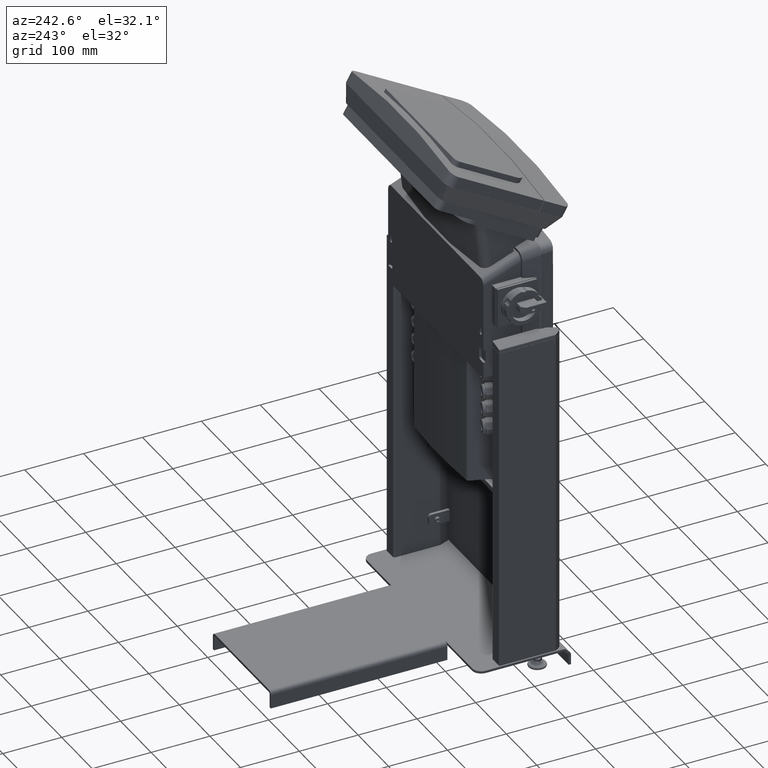
[diagram: clean part render]
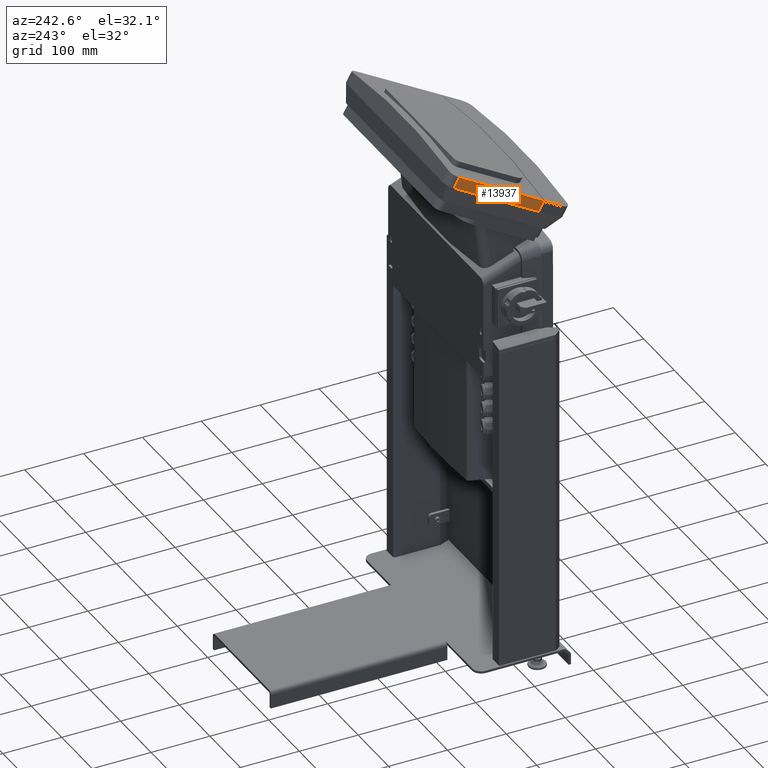
[diagram: same view with one face highlighted and labeled with its STEP entity id]
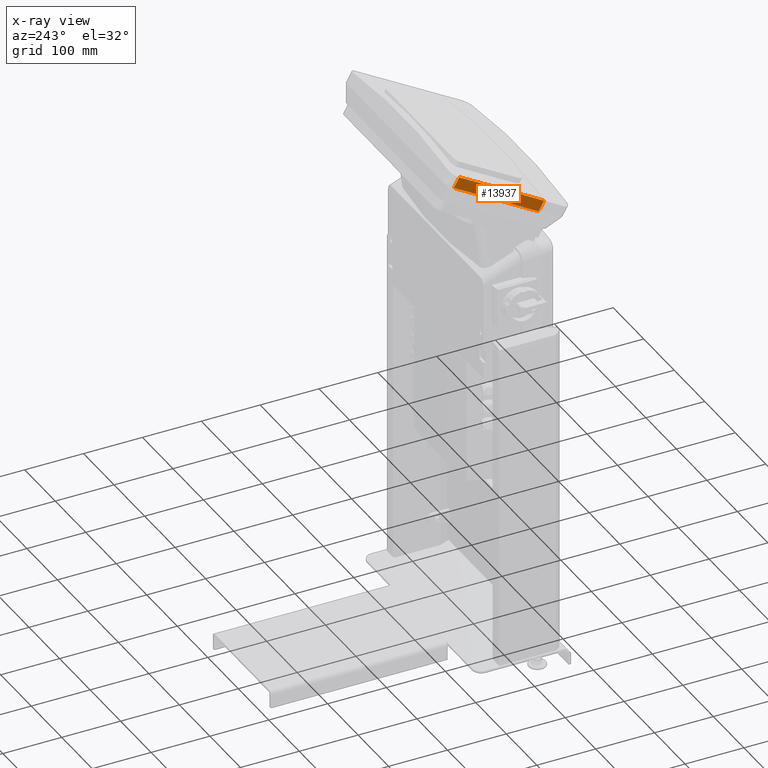
[diagram: x-ray of the same camera — body ghosted, the highlighted face saturated]
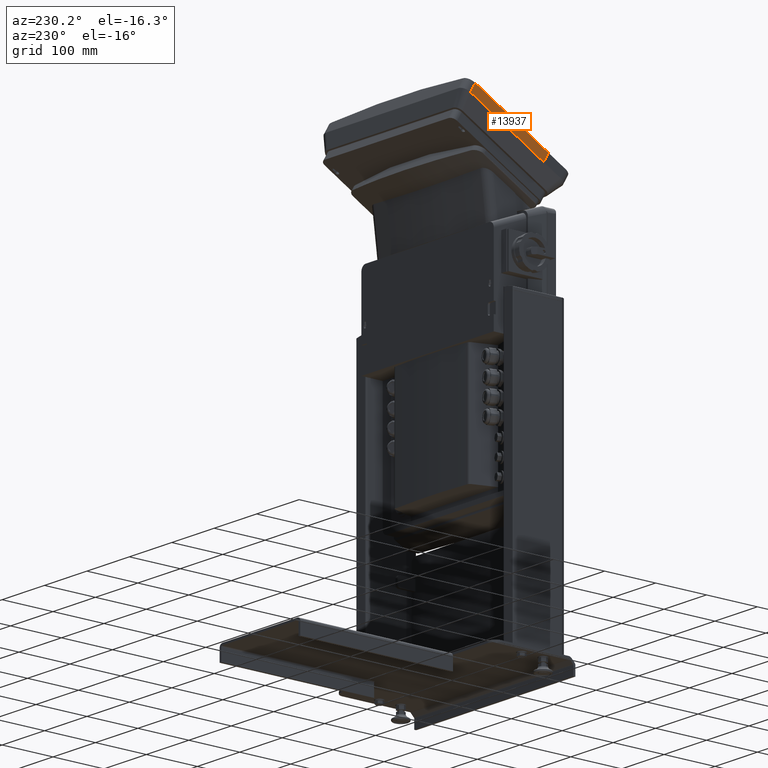
[diagram: same view with one face highlighted and labeled with its STEP entity id]
A machine part, auxiliary view. The second image highlights one B-rep face of the part: STEP entity #13937.
The next image is the same camera in x-ray: the body ghosted, the highlighted face saturated — about 0% of this face is hidden behind the body in this view.
A second angle (auxiliary view) of the same face is appended — the face is thin or edge-on in the first view.
In plain terms, the highlighted face is a freeform B-spline surface patch.
Its self-contained STEP definition (entity closure, byte-faithful):
#13811=CARTESIAN_POINT('',(-169.53061832758374,-331.88309346157229,791.06812584828515));
#13812=VERTEX_POINT('',#13811);
#13820=CARTESIAN_POINT('',(-169.53061832758374,-322.46026592726435,774.74730980790491));
#13821=VERTEX_POINT('',#13820);
#13822=CARTESIAN_POINT('',(-169.53061832758374,-322.46026592726435,774.74730980790491));
#13823=DIRECTION('',(0.0,-0.5,0.866025403784439));
#13824=VECTOR('',#13823,18.84565506861578);
#13825=LINE('',#13822,#13824);
#13826=EDGE_CURVE('',#13821,#13812,#13825,.T.);
#13907=CARTESIAN_POINT('',(-169.53061832758374,-216.6710505132597,940.83582985838075));
#13908=CARTESIAN_POINT('',(-169.53061832758374,-374.99852154483085,849.42542183819035));
#13909=CARTESIAN_POINT('',(-169.53061832758371,-135.15160811389691,799.64001381800006));
#13910=CARTESIAN_POINT('',(-169.53061832758374,-293.47907914546806,708.22960579780965));
#13911=B_SPLINE_SURFACE_WITH_KNOTS('',1,1,((#13907,#13909),(#13908,#13910)),.UNSPECIFIED.,.F.,.F.,.U.,(2,2),(2,2),(0.0,182.82081604038061),(0.0,163.03888479872541),.UNSPECIFIED.);
#13912=ORIENTED_EDGE('',*,*,#13826,.T.);
#13913=CARTESIAN_POINT('',(-169.53061832757999,-187.68986373146339,874.31812584828538));
#13914=VERTEX_POINT('',#13913);
#13915=CARTESIAN_POINT('',(-169.53061832757999,-331.88309346157246,791.06812584828549));
#13916=DIRECTION('',(0.0,0.866025403784438,0.500000000000001));
#13917=VECTOR('',#13916,166.5);
#13918=LINE('',#13915,#13917);
#13919=EDGE_CURVE('',#13812,#13914,#13918,.T.);
#13920=ORIENTED_EDGE('',*,*,#13919,.T.);
#13921=CARTESIAN_POINT('',(-169.53061832758374,-178.26703619715545,857.99730980790503));
#13922=VERTEX_POINT('',#13921);
#13923=CARTESIAN_POINT('',(-169.53061832758374,-178.26703619715559,857.99730980790491));
#13924=DIRECTION('',(0.0,-0.500000000000001,0.866025403784438));
#13925=VECTOR('',#13924,18.845655068615919);
#13926=LINE('',#13923,#13925);
#13927=EDGE_CURVE('',#13922,#13914,#13926,.T.);
#13928=ORIENTED_EDGE('',*,*,#13927,.F.);
#13929=CARTESIAN_POINT('',(-169.53061832758374,-178.26703619715539,857.99730980790503));
#13930=DIRECTION('',(0.0,-0.866025403784438,-0.500000000000001));
#13931=VECTOR('',#13930,166.5);
#13932=LINE('',#13929,#13931);
#13933=EDGE_CURVE('',#13922,#13821,#13932,.T.);
#13934=ORIENTED_EDGE('',*,*,#13933,.T.);
#13935=EDGE_LOOP('',(#13912,#13920,#13928,#13934));
#13936=FACE_OUTER_BOUND('',#13935,.T.);
#13937=ADVANCED_FACE('',(#13936),#13911,.F.);